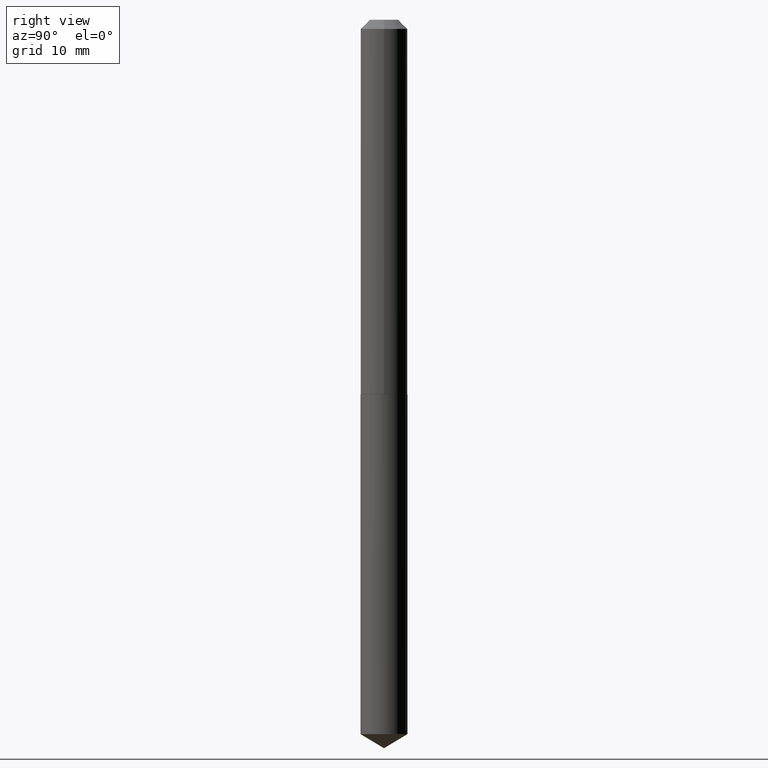
[diagram: clean part render]
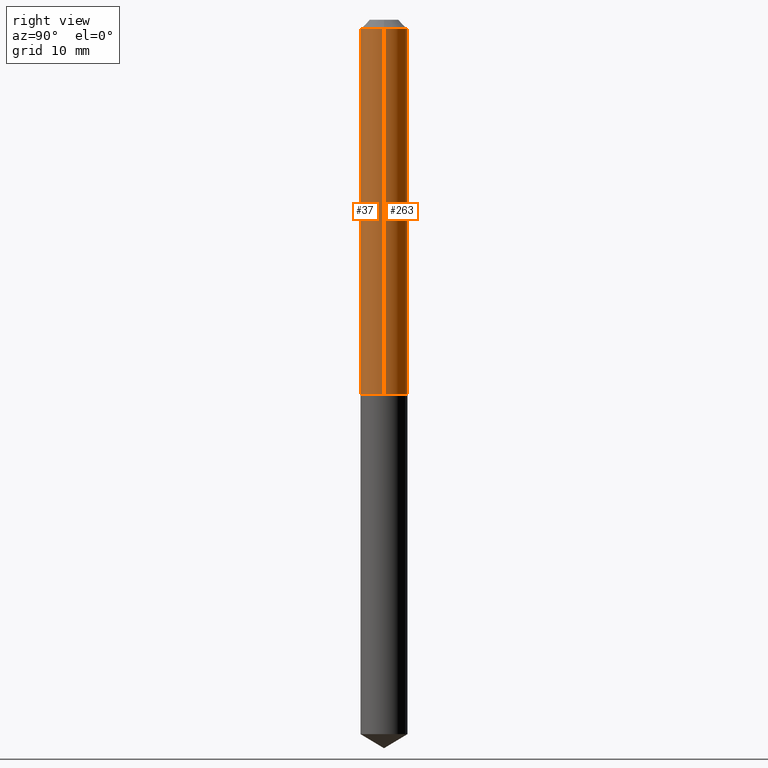
[diagram: same view with one multi-face feature highlighted, each face labeled with its STEP entity id]
A machine part, right view. The highlighted faces form ONE feature: a constant-radius fillet chain: 2 tangent blend faces with common blend radius 2.0447 mm. The faces share edges in the B-rep.
Their STEP definitions:
[1] entity #263 (Cylinder):
#6 = CARTESIAN_POINT ( 'NONE',  ( -0.08050000000000016864, -3.916312358795983195E-15, -1.285500000000000309 ) ) ;
#7 = CIRCLE ( 'NONE', #166, 0.08050000000000016864 ) ;
#9 = LINE ( 'NONE', #340, #39 ) ;
#12 = VERTEX_POINT ( 'NONE', #6 ) ;
#13 = CARTESIAN_POINT ( 'NONE',  ( -0.08050000000000000211, -1.726717124173974780E-15, -0.03125000000000020123 ) ) ;
#21 = VECTOR ( 'NONE', #311, 39.37007874015748143 ) ;
#25 = CIRCLE ( 'NONE', #225, 0.08050000000000000211 ) ;
#32 = DIRECTION ( 'NONE',  ( 1.000000000000000000, -6.982962677686266711E-15, 0.000000000000000000 ) ) ;
#39 = VECTOR ( 'NONE', #65, 39.37007874015748143 ) ;
#42 = CARTESIAN_POINT ( 'NONE',  ( 0.08050000000000008538, -5.621284955537450540E-16, 3.925322304515732881E-30 ) ) ;
#44 = DIRECTION ( 'NONE',  ( -2.445468806185136597E-29, 3.491481338843145583E-15, 1.000000000000000000 ) ) ;
#59 = VERTEX_POINT ( 'NONE', #227 ) ;
#65 = DIRECTION ( 'NONE',  ( -2.445468806185136877E-29, 3.491481338843145188E-15, 1.000000000000000000 ) ) ;
#69 = CARTESIAN_POINT ( 'NONE',  ( 0.000000000000000000, 0.000000000000000000, 0.000000000000000000 ) ) ;
#71 = VERTEX_POINT ( 'NONE', #219 ) ;
#75 = EDGE_CURVE ( 'NONE', #12, #150, #9, .T. ) ;
#78 = DIRECTION ( 'NONE',  ( 1.000000000000000000, -6.982962677686266711E-15, 4.876176775795936353E-29 ) ) ;
#83 = EDGE_CURVE ( 'NONE', #59, #71, #187, .T. ) ;
#131 = EDGE_CURVE ( 'NONE', #71, #150, #25, .T. ) ;
#135 = DIRECTION ( 'NONE',  ( 1.000000000000000000, -6.982962677686264344E-15, 0.000000000000000000 ) ) ;
#147 = ORIENTED_EDGE ( 'NONE', *, *, #75, .T. ) ;
#150 = VERTEX_POINT ( 'NONE', #13 ) ;
#162 = DIRECTION ( 'NONE',  ( -2.445468806185136597E-29, 3.491481338843145583E-15, 1.000000000000000000 ) ) ;
#166 = AXIS2_PLACEMENT_3D ( 'NONE', #352, #44, #135 ) ;
#179 = ORIENTED_EDGE ( 'NONE', *, *, #83, .F. ) ;
#187 = LINE ( 'NONE', #42, #21 ) ;
#218 = DIRECTION ( 'NONE',  ( -2.445468806185136597E-29, 3.491481338843145583E-15, 1.000000000000000000 ) ) ;
#219 = CARTESIAN_POINT ( 'NONE',  ( 0.08050000000000000211, -6.712372873925933657E-16, -0.03125000000000020123 ) ) ;
#225 = AXIS2_PLACEMENT_3D ( 'NONE', #243, #218, #32 ) ;
#227 = CARTESIAN_POINT ( 'NONE',  ( 0.08050000000000016864, -5.050427756636610195E-15, -1.285500000000000309 ) ) ;
#243 = CARTESIAN_POINT ( 'NONE',  ( 7.642090019328600035E-31, -1.091087918388489897E-16, -0.03125000000000020123 ) ) ;
#249 = EDGE_LOOP ( 'NONE', ( #366, #147, #344, #179 ) ) ;
#263 = ADVANCED_FACE ( 'NONE', ( #266 ), #345, .T. ) ;
#266 = FACE_OUTER_BOUND ( 'NONE', #249, .T. ) ;
#311 = DIRECTION ( 'NONE',  ( -2.445468806185136877E-29, 3.491481338843145188E-15, 1.000000000000000000 ) ) ;
#340 = CARTESIAN_POINT ( 'NONE',  ( -0.08050000000000008538, 5.719869022868812563E-16, -3.959742747655203411E-30 ) ) ;
#344 = ORIENTED_EDGE ( 'NONE', *, *, #131, .F. ) ;
#345 = CYLINDRICAL_SURFACE ( 'NONE', #361, 0.08050000000000008538 ) ;
#352 = CARTESIAN_POINT ( 'NONE',  ( 3.143650150350993956E-29, -4.488299261082864747E-15, -1.285500000000000309 ) ) ;
#361 = AXIS2_PLACEMENT_3D ( 'NONE', #69, #162, #78 ) ;
#366 = ORIENTED_EDGE ( 'NONE', *, *, #380, .T. ) ;
#380 = EDGE_CURVE ( 'NONE', #59, #12, #7, .T. ) ;
[2] entity #37 (Cylinder):
#1 = AXIS2_PLACEMENT_3D ( 'NONE', #347, #283, #183 ) ;
#6 = CARTESIAN_POINT ( 'NONE',  ( -0.08050000000000016864, -3.916312358795983195E-15, -1.285500000000000309 ) ) ;
#9 = LINE ( 'NONE', #340, #39 ) ;
#12 = VERTEX_POINT ( 'NONE', #6 ) ;
#13 = CARTESIAN_POINT ( 'NONE',  ( -0.08050000000000000211, -1.726717124173974780E-15, -0.03125000000000020123 ) ) ;
#21 = VECTOR ( 'NONE', #311, 39.37007874015748143 ) ;
#28 = EDGE_LOOP ( 'NONE', ( #388, #97, #193, #313 ) ) ;
#37 = ADVANCED_FACE ( 'NONE', ( #349 ), #74, .T. ) ;
#39 = VECTOR ( 'NONE', #65, 39.37007874015748143 ) ;
#42 = CARTESIAN_POINT ( 'NONE',  ( 0.08050000000000008538, -5.621284955537450540E-16, 3.925322304515732881E-30 ) ) ;
#59 = VERTEX_POINT ( 'NONE', #227 ) ;
#65 = DIRECTION ( 'NONE',  ( -2.445468806185136877E-29, 3.491481338843145188E-15, 1.000000000000000000 ) ) ;
#71 = VERTEX_POINT ( 'NONE', #219 ) ;
#72 = EDGE_CURVE ( 'NONE', #150, #71, #175, .T. ) ;
#74 = CYLINDRICAL_SURFACE ( 'NONE', #328, 0.08050000000000008538 ) ;
#75 = EDGE_CURVE ( 'NONE', #12, #150, #9, .T. ) ;
#83 = EDGE_CURVE ( 'NONE', #59, #71, #187, .T. ) ;
#97 = ORIENTED_EDGE ( 'NONE', *, *, #240, .T. ) ;
#99 = DIRECTION ( 'NONE',  ( 1.000000000000000000, -6.982962677686266711E-15, 4.876176775795936353E-29 ) ) ;
#100 = CARTESIAN_POINT ( 'NONE',  ( 3.143650150350993956E-29, -4.488299261082864747E-15, -1.285500000000000309 ) ) ;
#104 = DIRECTION ( 'NONE',  ( 1.000000000000000000, -6.982962677686264344E-15, 0.000000000000000000 ) ) ;
#106 = DIRECTION ( 'NONE',  ( -2.445468806185136597E-29, 3.491481338843145583E-15, 1.000000000000000000 ) ) ;
#150 = VERTEX_POINT ( 'NONE', #13 ) ;
#175 = CIRCLE ( 'NONE', #1, 0.08050000000000000211 ) ;
#183 = DIRECTION ( 'NONE',  ( 1.000000000000000000, -6.982962677686266711E-15, 0.000000000000000000 ) ) ;
#187 = LINE ( 'NONE', #42, #21 ) ;
#193 = ORIENTED_EDGE ( 'NONE', *, *, #83, .T. ) ;
#219 = CARTESIAN_POINT ( 'NONE',  ( 0.08050000000000000211, -6.712372873925933657E-16, -0.03125000000000020123 ) ) ;
#223 = DIRECTION ( 'NONE',  ( -2.445468806185136597E-29, 3.491481338843145583E-15, 1.000000000000000000 ) ) ;
#227 = CARTESIAN_POINT ( 'NONE',  ( 0.08050000000000016864, -5.050427756636610195E-15, -1.285500000000000309 ) ) ;
#235 = CIRCLE ( 'NONE', #291, 0.08050000000000016864 ) ;
#240 = EDGE_CURVE ( 'NONE', #12, #59, #235, .T. ) ;
#283 = DIRECTION ( 'NONE',  ( -2.445468806185136597E-29, 3.491481338843145583E-15, 1.000000000000000000 ) ) ;
#291 = AXIS2_PLACEMENT_3D ( 'NONE', #100, #223, #104 ) ;
#311 = DIRECTION ( 'NONE',  ( -2.445468806185136877E-29, 3.491481338843145188E-15, 1.000000000000000000 ) ) ;
#313 = ORIENTED_EDGE ( 'NONE', *, *, #72, .F. ) ;
#328 = AXIS2_PLACEMENT_3D ( 'NONE', #337, #106, #99 ) ;
#337 = CARTESIAN_POINT ( 'NONE',  ( 0.000000000000000000, 0.000000000000000000, 0.000000000000000000 ) ) ;
#340 = CARTESIAN_POINT ( 'NONE',  ( -0.08050000000000008538, 5.719869022868812563E-16, -3.959742747655203411E-30 ) ) ;
#347 = CARTESIAN_POINT ( 'NONE',  ( 7.642090019328600035E-31, -1.091087918388489897E-16, -0.03125000000000020123 ) ) ;
#349 = FACE_OUTER_BOUND ( 'NONE', #28, .T. ) ;
#388 = ORIENTED_EDGE ( 'NONE', *, *, #75, .F. ) ;